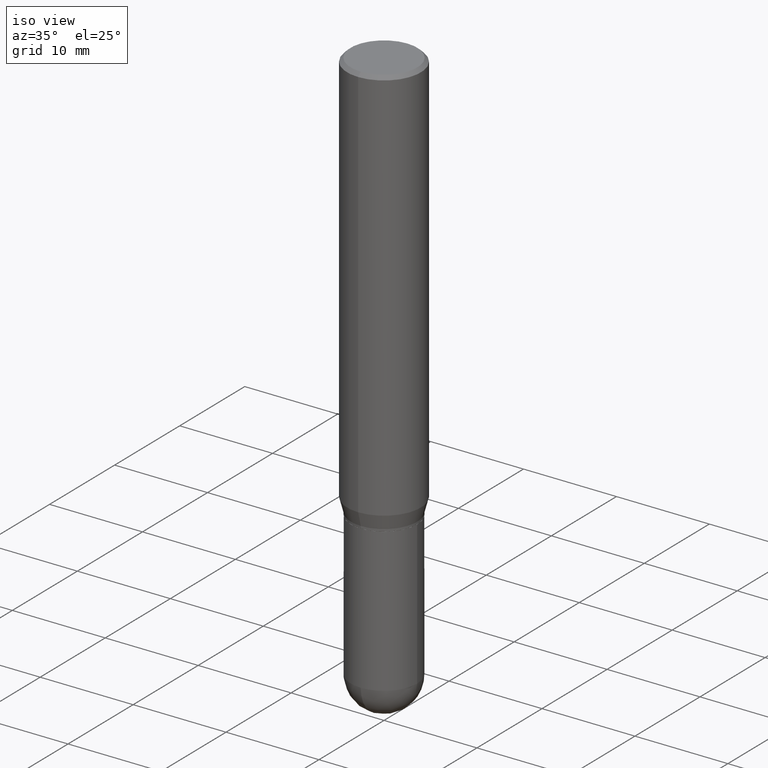
[diagram: clean part render]
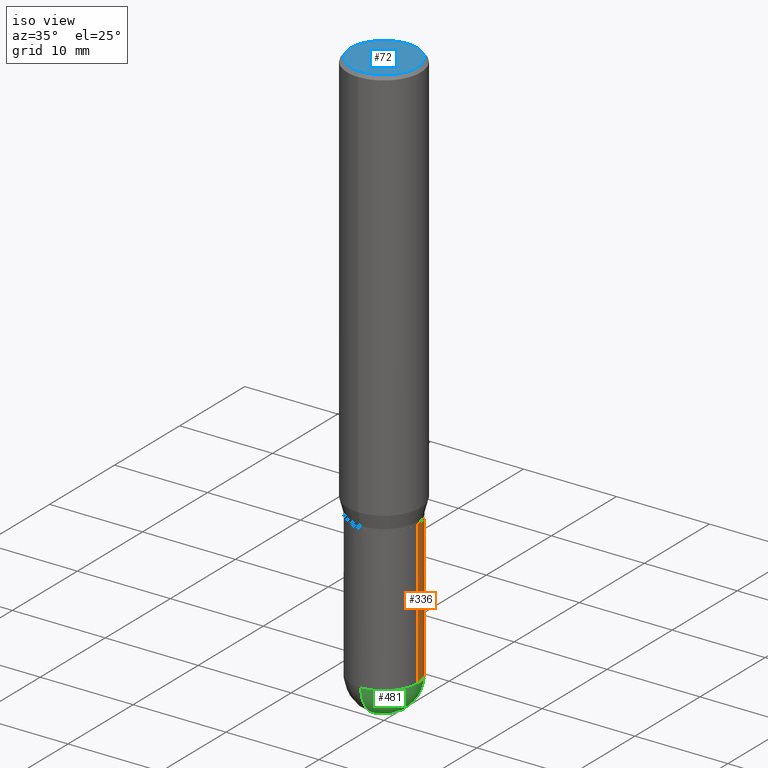
[diagram: same view with three faces highlighted in distinct colors, each labeled with its STEP entity id]
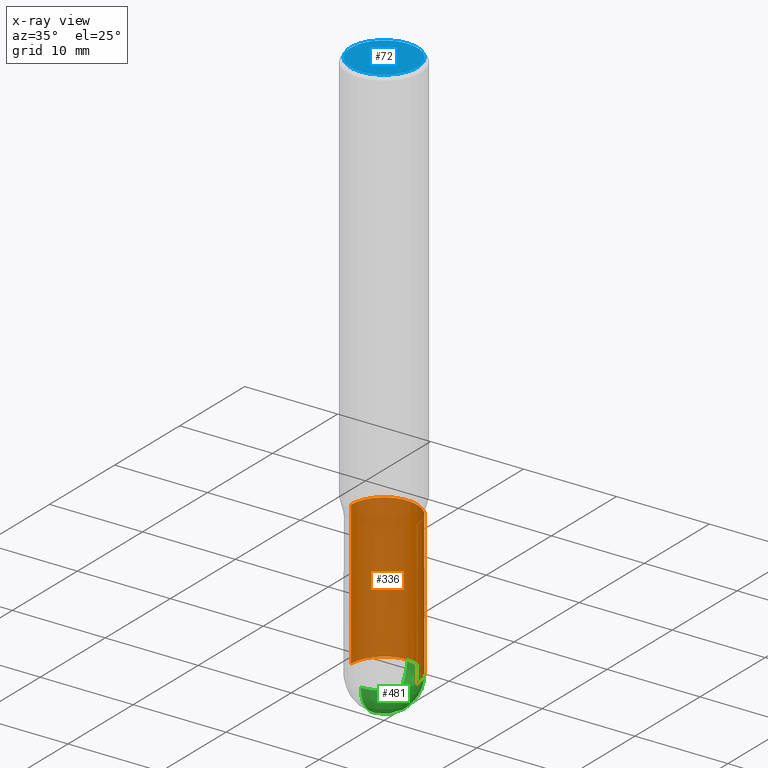
[diagram: x-ray of the same camera — body ghosted, the three highlighted faces saturated]
A machine part, iso view with three faces highlighted in distinct colors.
The next image is the same camera in x-ray (body ghosted, the three faces saturated) — at least one of them is partly hidden behind the body in this view.
Their STEP definitions:

[orange] entity #336 — the highlighted cylindrical surface (partial cylindrical patch) has radius 3.5712 mm, axis along (-0, 0, 1).
#5 = CARTESIAN_POINT ( 'NONE',  ( -0.1406000000000000583, -6.174923620442310269E-15, -2.359399999999999942 ) ) ;
#20 = DIRECTION ( 'NONE',  ( 1.000000000000000000, -6.982962677686265133E-15, 0.000000000000000000 ) ) ;
#34 = DIRECTION ( 'NONE',  ( 1.000000000000000000, -6.982962677686270655E-15, 0.000000000000000000 ) ) ;
#36 = CARTESIAN_POINT ( 'NONE',  ( 0.1406000000000000028, -9.818045524826893030E-16, 6.855904546769086274E-30 ) ) ;
#38 = CARTESIAN_POINT ( 'NONE',  ( -0.1406000000000000028, 9.990230864787008809E-16, -6.916022736898399140E-30 ) ) ;
#44 = CARTESIAN_POINT ( 'NONE',  ( 9.818045524827470871E-16, 0.1405999999999918426, -2.359400000000000386 ) ) ;
#48 = EDGE_LOOP ( 'NONE', ( #427, #269, #361, #324, #140 ) ) ;
#58 = DIRECTION ( 'NONE',  ( -2.445468806185136597E-29, 3.491481338843145583E-15, 1.000000000000000000 ) ) ;
#61 = CARTESIAN_POINT ( 'NONE',  ( -0.1406000000000000028, -6.174923620442310269E-15, -1.750000000000000222 ) ) ;
#77 = CIRCLE ( 'NONE', #414, 0.1406000000000000305 ) ;
#82 = DIRECTION ( 'NONE',  ( -2.445468806185136597E-29, 3.491481338843145583E-15, 1.000000000000000000 ) ) ;
#92 = CARTESIAN_POINT ( 'NONE',  ( 0.1406000000000000028, -7.091896895458194566E-15, -1.750000000000000222 ) ) ;
#110 = CIRCLE ( 'NONE', #220, 0.1406000000000000305 ) ;
#116 = FACE_OUTER_BOUND ( 'NONE', #48, .T. ) ;
#137 = EDGE_CURVE ( 'NONE', #175, #230, #77, .T. ) ;
#140 = ORIENTED_EDGE ( 'NONE', *, *, #432, .T. ) ;
#143 = VECTOR ( 'NONE', #174, 39.37007874015748143 ) ;
#149 = AXIS2_PLACEMENT_3D ( 'NONE', #264, #424, #499 ) ;
#173 = VERTEX_POINT ( 'NONE', #92 ) ;
#174 = DIRECTION ( 'NONE',  ( -2.445468806185136877E-29, 3.491481338843145188E-15, 1.000000000000000000 ) ) ;
#175 = VERTEX_POINT ( 'NONE', #44 ) ;
#204 = DIRECTION ( 'NONE',  ( -2.445468806185136597E-29, 3.491481338843145583E-15, 1.000000000000000000 ) ) ;
#209 = VECTOR ( 'NONE', #464, 39.37007874015748143 ) ;
#211 = EDGE_CURVE ( 'NONE', #173, #311, #349, .T. ) ;
#220 = AXIS2_PLACEMENT_3D ( 'NONE', #467, #204, #239 ) ;
#230 = VERTEX_POINT ( 'NONE', #5 ) ;
#239 = DIRECTION ( 'NONE',  ( 1.000000000000000000, -6.982962677686270655E-15, 0.000000000000000000 ) ) ;
#264 = CARTESIAN_POINT ( 'NONE',  ( 0.000000000000000000, 0.000000000000000000, 0.000000000000000000 ) ) ;
#269 = ORIENTED_EDGE ( 'NONE', *, *, #479, .T. ) ;
#277 = LINE ( 'NONE', #38, #209 ) ;
#311 = VERTEX_POINT ( 'NONE', #61 ) ;
#324 = ORIENTED_EDGE ( 'NONE', *, *, #370, .F. ) ;
#336 = ADVANCED_FACE ( 'NONE', ( #116 ), #347, .T. ) ;
#347 = CYLINDRICAL_SURFACE ( 'NONE', #149, 0.1406000000000000028 ) ;
#349 = CIRCLE ( 'NONE', #459, 0.1406000000000000028 ) ;
#361 = ORIENTED_EDGE ( 'NONE', *, *, #211, .F. ) ;
#370 = EDGE_CURVE ( 'NONE', #423, #173, #383, .T. ) ;
#383 = LINE ( 'NONE', #36, #143 ) ;
#405 = CARTESIAN_POINT ( 'NONE',  ( 4.279570410823989044E-29, -6.110092342975505460E-15, -1.750000000000000222 ) ) ;
#414 = AXIS2_PLACEMENT_3D ( 'NONE', #512, #82, #34 ) ;
#423 = VERTEX_POINT ( 'NONE', #461 ) ;
#424 = DIRECTION ( 'NONE',  ( -2.445468806185136597E-29, 3.491481338843145583E-15, 1.000000000000000000 ) ) ;
#427 = ORIENTED_EDGE ( 'NONE', *, *, #137, .T. ) ;
#432 = EDGE_CURVE ( 'NONE', #423, #175, #110, .T. ) ;
#459 = AXIS2_PLACEMENT_3D ( 'NONE', #405, #58, #20 ) ;
#461 = CARTESIAN_POINT ( 'NONE',  ( 0.1406000000000000583, -8.155751259403701439E-15, -2.359399999999999942 ) ) ;
#464 = DIRECTION ( 'NONE',  ( -2.445468806185136877E-29, 3.491481338843145188E-15, 1.000000000000000000 ) ) ;
#467 = CARTESIAN_POINT ( 'NONE',  ( 5.769839101313211634E-29, -8.237801070866517629E-15, -2.359399999999999942 ) ) ;
#479 = EDGE_CURVE ( 'NONE', #230, #311, #277, .T. ) ;
#499 = DIRECTION ( 'NONE',  ( 1.000000000000000000, -6.982962677686268288E-15, 4.876176775795936353E-29 ) ) ;
#512 = CARTESIAN_POINT ( 'NONE',  ( 5.769839101313211634E-29, -8.237801070866517629E-15, -2.359399999999999942 ) ) ;

[blue] entity #72 — the highlighted planar face has unit normal (0, -0, -1).
#60 = EDGE_LOOP ( 'NONE', ( #469, #395 ) ) ;
#72 = ADVANCED_FACE ( 'NONE', ( #447 ), #193, .F. ) ;
#83 = VERTEX_POINT ( 'NONE', #406 ) ;
#85 = CARTESIAN_POINT ( 'NONE',  ( 4.139469948881899013E-46, -5.909113537491046332E-32, -1.692573988474575902E-17 ) ) ;
#100 = EDGE_CURVE ( 'NONE', #131, #83, #497, .T. ) ;
#131 = VERTEX_POINT ( 'NONE', #308 ) ;
#145 = DIRECTION ( 'NONE',  ( 6.982962677686265922E-15, 1.000000000000000000, -3.491199544438589874E-15 ) ) ;
#147 = DIRECTION ( 'NONE',  ( 2.445665582166115716E-29, -3.491199544438589874E-15, -1.000000000000000000 ) ) ;
#168 = AXIS2_PLACEMENT_3D ( 'NONE', #337, #147, #145 ) ;
#188 = AXIS2_PLACEMENT_3D ( 'NONE', #360, #237, #429 ) ;
#193 = PLANE ( 'NONE',  #168 ) ;
#205 = DIRECTION ( 'NONE',  ( -2.445665582166115996E-29, 3.491199544438589874E-15, 1.000000000000000000 ) ) ;
#237 = DIRECTION ( 'NONE',  ( -2.445665582166115996E-29, 3.491199544438589874E-15, 1.000000000000000000 ) ) ;
#308 = CARTESIAN_POINT ( 'NONE',  ( 1.038715698305832292E-15, 0.1412499999999999867, -5.100576755366965605E-16 ) ) ;
#310 = DIRECTION ( 'NONE',  ( -6.982962677686265922E-15, -1.000000000000000000, 3.491199544438590663E-15 ) ) ;
#332 = AXIS2_PLACEMENT_3D ( 'NONE', #85, #205, #310 ) ;
#337 = CARTESIAN_POINT ( 'NONE',  ( 9.863434782231850151E-16, 0.1412499999999999867, -5.015948055943237180E-16 ) ) ;
#357 = CIRCLE ( 'NONE', #188, 0.1412499999999999867 ) ;
#360 = CARTESIAN_POINT ( 'NONE',  ( 4.139469948881899013E-46, -5.909113537491046332E-32, -1.692573988474575902E-17 ) ) ;
#395 = ORIENTED_EDGE ( 'NONE', *, *, #493, .T. ) ;
#406 = CARTESIAN_POINT ( 'NONE',  ( -1.020499077168515012E-15, -0.1412499999999999867, 4.762061957672050918E-16 ) ) ;
#429 = DIRECTION ( 'NONE',  ( -6.982962677686265922E-15, -1.000000000000000000, 3.491199544438590663E-15 ) ) ;
#447 = FACE_OUTER_BOUND ( 'NONE', #60, .T. ) ;
#469 = ORIENTED_EDGE ( 'NONE', *, *, #100, .T. ) ;
#493 = EDGE_CURVE ( 'NONE', #83, #131, #357, .T. ) ;
#497 = CIRCLE ( 'NONE', #332, 0.1412499999999999867 ) ;

[green] entity #481 — the highlighted spherical surface has radius 3.5712 mm.
#8 = EDGE_LOOP ( 'NONE', ( #322, #244, #189, #25 ) ) ;
#25 = ORIENTED_EDGE ( 'NONE', *, *, #232, .F. ) ;
#40 = DIRECTION ( 'NONE',  ( 6.982962677686265922E-15, 1.000000000000000000, -3.885985766236502230E-15 ) ) ;
#44 = CARTESIAN_POINT ( 'NONE',  ( 9.818045524827470871E-16, 0.1405999999999918426, -2.359400000000000386 ) ) ;
#54 = AXIS2_PLACEMENT_3D ( 'NONE', #78, #305, #225 ) ;
#64 = AXIS2_PLACEMENT_3D ( 'NONE', #228, #123, #89 ) ;
#78 = CARTESIAN_POINT ( 'NONE',  ( 5.757815463287349061E-29, -8.255019604862529009E-15, -2.359399999999999942 ) ) ;
#88 = AXIS2_PLACEMENT_3D ( 'NONE', #199, #390, #40 ) ;
#89 = DIRECTION ( 'NONE',  ( 6.982962677686266711E-15, 1.000000000000000000, 0.000000000000000000 ) ) ;
#110 = CIRCLE ( 'NONE', #220, 0.1406000000000000305 ) ;
#123 = DIRECTION ( 'NONE',  ( 1.000000000000000000, -6.982962677686265922E-15, 4.883557194083112340E-29 ) ) ;
#126 = CIRCLE ( 'NONE', #303, 0.1406000000000000305 ) ;
#132 = VERTEX_POINT ( 'NONE', #463 ) ;
#135 = CARTESIAN_POINT ( 'NONE',  ( 6.107660196449910766E-29, -8.737312614105869844E-15, -2.500000000000000000 ) ) ;
#148 = EDGE_CURVE ( 'NONE', #256, #175, #473, .T. ) ;
#175 = VERTEX_POINT ( 'NONE', #44 ) ;
#180 = CARTESIAN_POINT ( 'NONE',  ( 5.769839101313211634E-29, -8.237801070866517629E-15, -2.359399999999999942 ) ) ;
#189 = ORIENTED_EDGE ( 'NONE', *, *, #432, .F. ) ;
#199 = CARTESIAN_POINT ( 'NONE',  ( 5.757815463287349061E-29, -8.255019604862529009E-15, -2.359399999999999942 ) ) ;
#204 = DIRECTION ( 'NONE',  ( -2.445468806185136597E-29, 3.491481338843145583E-15, 1.000000000000000000 ) ) ;
#220 = AXIS2_PLACEMENT_3D ( 'NONE', #467, #204, #239 ) ;
#225 = DIRECTION ( 'NONE',  ( -7.105427357601001859E-15, -1.000000000000000000, 0.000000000000000000 ) ) ;
#228 = CARTESIAN_POINT ( 'NONE',  ( 5.757815463287349061E-29, -8.255019604862529009E-15, -2.359399999999999942 ) ) ;
#232 = EDGE_CURVE ( 'NONE', #132, #423, #126, .T. ) ;
#239 = DIRECTION ( 'NONE',  ( 1.000000000000000000, -6.982962677686270655E-15, 0.000000000000000000 ) ) ;
#244 = ORIENTED_EDGE ( 'NONE', *, *, #148, .T. ) ;
#256 = VERTEX_POINT ( 'NONE', #135 ) ;
#268 = CIRCLE ( 'NONE', #54, 0.1406000000000000860 ) ;
#275 = FACE_OUTER_BOUND ( 'NONE', #8, .T. ) ;
#303 = AXIS2_PLACEMENT_3D ( 'NONE', #180, #398, #484 ) ;
#305 = DIRECTION ( 'NONE',  ( -1.000000000000000000, 7.105427357601001070E-15, -4.926315508542082329E-29 ) ) ;
#322 = ORIENTED_EDGE ( 'NONE', *, *, #344, .F. ) ;
#344 = EDGE_CURVE ( 'NONE', #256, #132, #268, .T. ) ;
#390 = DIRECTION ( 'NONE',  ( -1.000000000000000000, 6.982962677686265922E-15, -4.883557194083112340E-29 ) ) ;
#398 = DIRECTION ( 'NONE',  ( -2.445468806185136597E-29, 3.491481338843145583E-15, 1.000000000000000000 ) ) ;
#423 = VERTEX_POINT ( 'NONE', #461 ) ;
#432 = EDGE_CURVE ( 'NONE', #423, #175, #110, .T. ) ;
#439 = SPHERICAL_SURFACE ( 'NONE', #88, 0.1406000000000000860 ) ;
#461 = CARTESIAN_POINT ( 'NONE',  ( 0.1406000000000000583, -8.155751259403701439E-15, -2.359399999999999942 ) ) ;
#463 = CARTESIAN_POINT ( 'NONE',  ( -9.990230864786434913E-16, -0.1406000000000083017, -2.359399999999999498 ) ) ;
#467 = CARTESIAN_POINT ( 'NONE',  ( 5.769839101313211634E-29, -8.237801070866517629E-15, -2.359399999999999942 ) ) ;
#473 = CIRCLE ( 'NONE', #64, 0.1406000000000000860 ) ;
#481 = ADVANCED_FACE ( 'NONE', ( #275 ), #439, .T. ) ;
#484 = DIRECTION ( 'NONE',  ( 1.000000000000000000, -6.982962677686270655E-15, 0.000000000000000000 ) ) ;